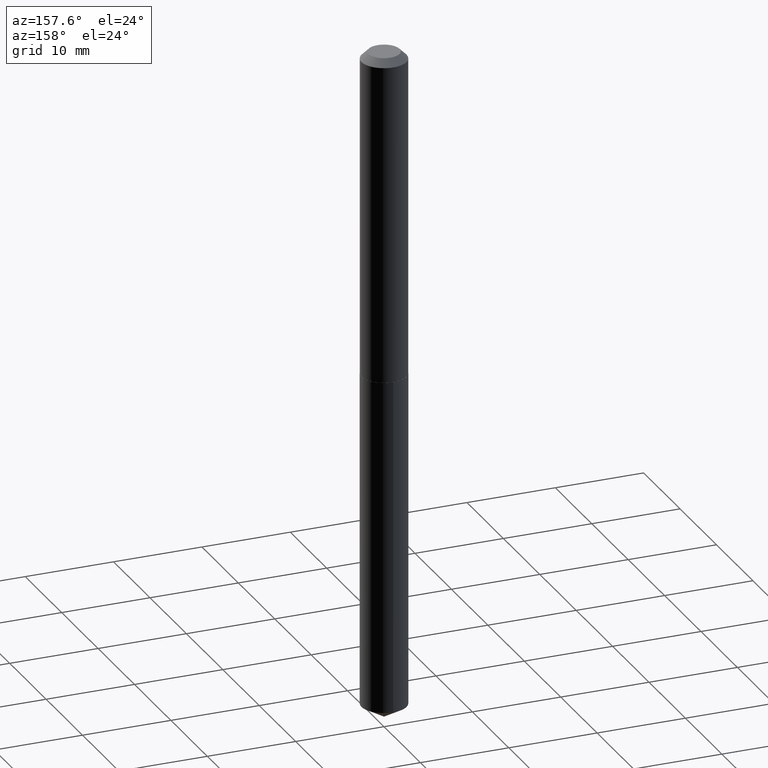
[diagram: clean part render]
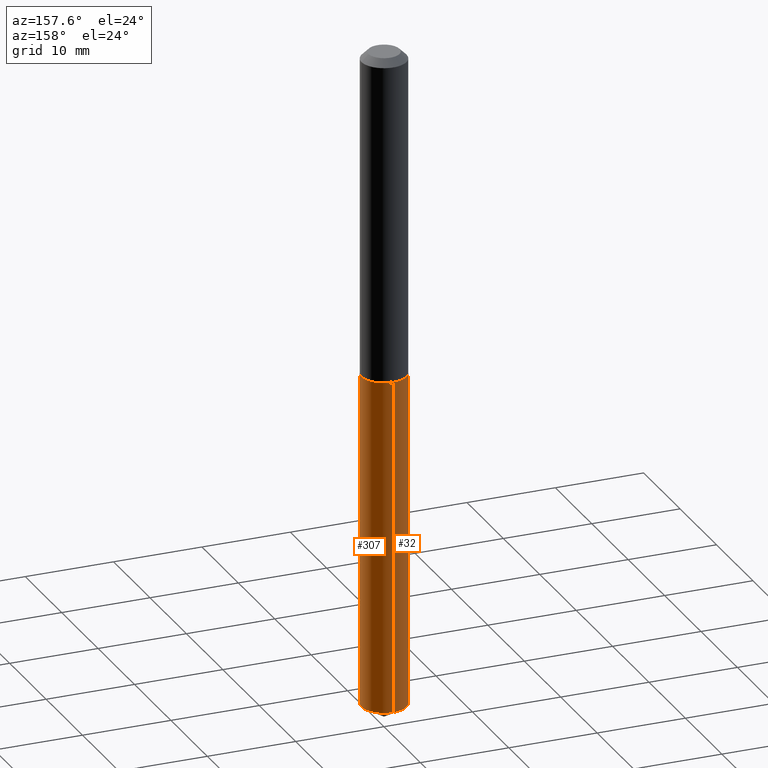
[diagram: same view with one multi-face feature highlighted, each face labeled with its STEP entity id]
A machine part, auxiliary view. The highlighted faces form ONE feature: a constant-radius fillet chain: 2 tangent blend faces with common blend radius 2.5527 mm. The faces share edges in the B-rep.
Their STEP definitions:
[1] entity #32 (Cylinder):
#4 = DIRECTION ( 'NONE',  ( -2.445453720177075881E-29, 3.491502942865330851E-15, 1.000000000000000000 ) ) ;
#7 = VECTOR ( 'NONE', #22, 39.37007874015748143 ) ;
#22 = DIRECTION ( 'NONE',  ( -2.445453720177075881E-29, 3.491502942865330457E-15, 1.000000000000000000 ) ) ;
#27 = EDGE_CURVE ( 'NONE', #112, #256, #186, .T. ) ;
#32 = ADVANCED_FACE ( 'NONE', ( #278 ), #367, .T. ) ;
#62 = EDGE_CURVE ( 'NONE', #334, #256, #136, .T. ) ;
#71 = CARTESIAN_POINT ( 'NONE',  ( 3.548375237774633332E-29, -5.066139422661404516E-15, -1.451000000000000068 ) ) ;
#81 = CARTESIAN_POINT ( 'NONE',  ( 3.548375237774633332E-29, -5.066139422661404516E-15, -1.451000000000000068 ) ) ;
#82 = LINE ( 'NONE', #295, #7 ) ;
#85 = CARTESIAN_POINT ( 'NONE',  ( 7.188710678299985693E-29, -1.026363786589134898E-14, -2.939613507787730562 ) ) ;
#97 = CIRCLE ( 'NONE', #138, 0.1005000000000000060 ) ;
#101 = CARTESIAN_POINT ( 'NONE',  ( -7.017877491074343767E-16, -0.1005000000000050853, -1.450999999999999845 ) ) ;
#112 = VERTEX_POINT ( 'NONE', #308 ) ;
#129 = VERTEX_POINT ( 'NONE', #306 ) ;
#136 = LINE ( 'NONE', #101, #388 ) ;
#138 = AXIS2_PLACEMENT_3D ( 'NONE', #85, #171, #143 ) ;
#143 = DIRECTION ( 'NONE',  ( -6.982962677686265922E-15, -1.000000000000000000, 5.436513420227388995E-15 ) ) ;
#153 = ORIENTED_EDGE ( 'NONE', *, *, #27, .F. ) ;
#160 = DIRECTION ( 'NONE',  ( -6.982962677686265922E-15, -1.000000000000000000, 2.718256710113694497E-15 ) ) ;
#171 = DIRECTION ( 'NONE',  ( -2.445453720177075881E-29, 3.491502942865330851E-15, 1.000000000000000000 ) ) ;
#173 = CARTESIAN_POINT ( 'NONE',  ( -7.017877491073979905E-16, -0.1005000000000102756, -2.939613507787730118 ) ) ;
#186 = CIRCLE ( 'NONE', #243, 0.1005000000000000060 ) ;
#200 = DIRECTION ( 'NONE',  ( -6.982962677686265922E-15, -1.000000000000000000, 2.718256710113694497E-15 ) ) ;
#218 = ORIENTED_EDGE ( 'NONE', *, *, #374, .F. ) ;
#231 = ORIENTED_EDGE ( 'NONE', *, *, #62, .T. ) ;
#234 = DIRECTION ( 'NONE',  ( -2.445453720177075881E-29, 3.491502942865330851E-15, 1.000000000000000000 ) ) ;
#243 = AXIS2_PLACEMENT_3D ( 'NONE', #81, #234, #200 ) ;
#256 = VERTEX_POINT ( 'NONE', #293 ) ;
#258 = AXIS2_PLACEMENT_3D ( 'NONE', #71, #4, #160 ) ;
#277 = EDGE_LOOP ( 'NONE', ( #218, #286, #231, #153 ) ) ;
#278 = FACE_OUTER_BOUND ( 'NONE', #277, .T. ) ;
#281 = EDGE_CURVE ( 'NONE', #129, #334, #97, .T. ) ;
#286 = ORIENTED_EDGE ( 'NONE', *, *, #281, .T. ) ;
#293 = CARTESIAN_POINT ( 'NONE',  ( -7.017877491074343767E-16, -0.1005000000000050853, -1.450999999999999845 ) ) ;
#295 = CARTESIAN_POINT ( 'NONE',  ( 7.140954494389360309E-16, 0.1004999999999949406, -1.451000000000000512 ) ) ;
#306 = CARTESIAN_POINT ( 'NONE',  ( 7.140954494389726143E-16, 0.1004999999999897503, -2.939613507787731006 ) ) ;
#308 = CARTESIAN_POINT ( 'NONE',  ( 7.140954494389727130E-16, 0.1004999999999949406, -1.451000000000000512 ) ) ;
#334 = VERTEX_POINT ( 'NONE', #173 ) ;
#335 = DIRECTION ( 'NONE',  ( -2.445453720177075881E-29, 3.491502942865330457E-15, 1.000000000000000000 ) ) ;
#367 = CYLINDRICAL_SURFACE ( 'NONE', #258, 0.1005000000000000060 ) ;
#374 = EDGE_CURVE ( 'NONE', #129, #112, #82, .T. ) ;
#388 = VECTOR ( 'NONE', #335, 39.37007874015748143 ) ;
[2] entity #307 (Cylinder):
#7 = VECTOR ( 'NONE', #22, 39.37007874015748143 ) ;
#9 = ORIENTED_EDGE ( 'NONE', *, *, #220, .T. ) ;
#22 = DIRECTION ( 'NONE',  ( -2.445453720177075881E-29, 3.491502942865330457E-15, 1.000000000000000000 ) ) ;
#42 = ORIENTED_EDGE ( 'NONE', *, *, #374, .T. ) ;
#51 = FACE_OUTER_BOUND ( 'NONE', #319, .T. ) ;
#62 = EDGE_CURVE ( 'NONE', #334, #256, #136, .T. ) ;
#65 = CIRCLE ( 'NONE', #299, 0.1005000000000000060 ) ;
#72 = ORIENTED_EDGE ( 'NONE', *, *, #359, .F. ) ;
#80 = CARTESIAN_POINT ( 'NONE',  ( 3.548375237774633332E-29, -5.066139422661404516E-15, -1.451000000000000068 ) ) ;
#82 = LINE ( 'NONE', #295, #7 ) ;
#101 = CARTESIAN_POINT ( 'NONE',  ( -7.017877491074343767E-16, -0.1005000000000050853, -1.450999999999999845 ) ) ;
#111 = DIRECTION ( 'NONE',  ( -2.445453720177075881E-29, 3.491502942865330851E-15, 1.000000000000000000 ) ) ;
#112 = VERTEX_POINT ( 'NONE', #308 ) ;
#125 = CIRCLE ( 'NONE', #384, 0.1005000000000000060 ) ;
#129 = VERTEX_POINT ( 'NONE', #306 ) ;
#136 = LINE ( 'NONE', #101, #388 ) ;
#147 = DIRECTION ( 'NONE',  ( -2.445453720177075881E-29, 3.491502942865330851E-15, 1.000000000000000000 ) ) ;
#161 = DIRECTION ( 'NONE',  ( -2.445453720177075881E-29, 3.491502942865330851E-15, 1.000000000000000000 ) ) ;
#168 = AXIS2_PLACEMENT_3D ( 'NONE', #206, #147, #321 ) ;
#169 = DIRECTION ( 'NONE',  ( -6.982962677686265922E-15, -1.000000000000000000, 5.436513420227388995E-15 ) ) ;
#173 = CARTESIAN_POINT ( 'NONE',  ( -7.017877491073979905E-16, -0.1005000000000102756, -2.939613507787730118 ) ) ;
#199 = DIRECTION ( 'NONE',  ( -6.982962677686265922E-15, -1.000000000000000000, 2.718256710113694497E-15 ) ) ;
#206 = CARTESIAN_POINT ( 'NONE',  ( 3.548375237774633332E-29, -5.066139422661404516E-15, -1.451000000000000068 ) ) ;
#207 = ORIENTED_EDGE ( 'NONE', *, *, #62, .F. ) ;
#220 = EDGE_CURVE ( 'NONE', #334, #129, #65, .T. ) ;
#256 = VERTEX_POINT ( 'NONE', #293 ) ;
#293 = CARTESIAN_POINT ( 'NONE',  ( -7.017877491074343767E-16, -0.1005000000000050853, -1.450999999999999845 ) ) ;
#295 = CARTESIAN_POINT ( 'NONE',  ( 7.140954494389360309E-16, 0.1004999999999949406, -1.451000000000000512 ) ) ;
#299 = AXIS2_PLACEMENT_3D ( 'NONE', #311, #161, #169 ) ;
#306 = CARTESIAN_POINT ( 'NONE',  ( 7.140954494389726143E-16, 0.1004999999999897503, -2.939613507787731006 ) ) ;
#307 = ADVANCED_FACE ( 'NONE', ( #51 ), #385, .T. ) ;
#308 = CARTESIAN_POINT ( 'NONE',  ( 7.140954494389727130E-16, 0.1004999999999949406, -1.451000000000000512 ) ) ;
#311 = CARTESIAN_POINT ( 'NONE',  ( 7.188710678299985693E-29, -1.026363786589134898E-14, -2.939613507787730562 ) ) ;
#319 = EDGE_LOOP ( 'NONE', ( #9, #42, #72, #207 ) ) ;
#321 = DIRECTION ( 'NONE',  ( -6.982962677686265922E-15, -1.000000000000000000, 2.718256710113694497E-15 ) ) ;
#334 = VERTEX_POINT ( 'NONE', #173 ) ;
#335 = DIRECTION ( 'NONE',  ( -2.445453720177075881E-29, 3.491502942865330457E-15, 1.000000000000000000 ) ) ;
#359 = EDGE_CURVE ( 'NONE', #256, #112, #125, .T. ) ;
#374 = EDGE_CURVE ( 'NONE', #129, #112, #82, .T. ) ;
#384 = AXIS2_PLACEMENT_3D ( 'NONE', #80, #111, #199 ) ;
#385 = CYLINDRICAL_SURFACE ( 'NONE', #168, 0.1005000000000000060 ) ;
#388 = VECTOR ( 'NONE', #335, 39.37007874015748143 ) ;